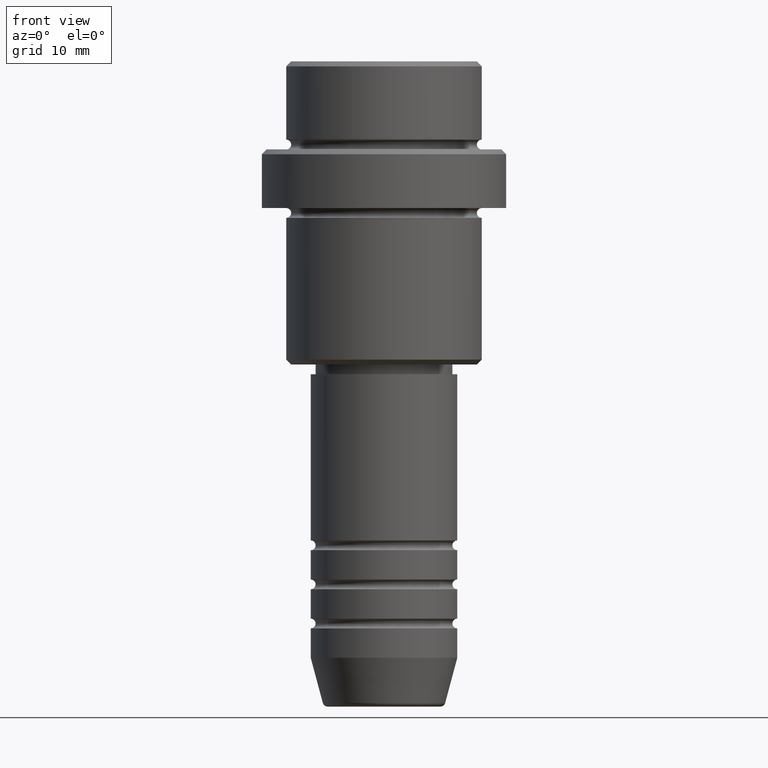
[diagram: clean part render]
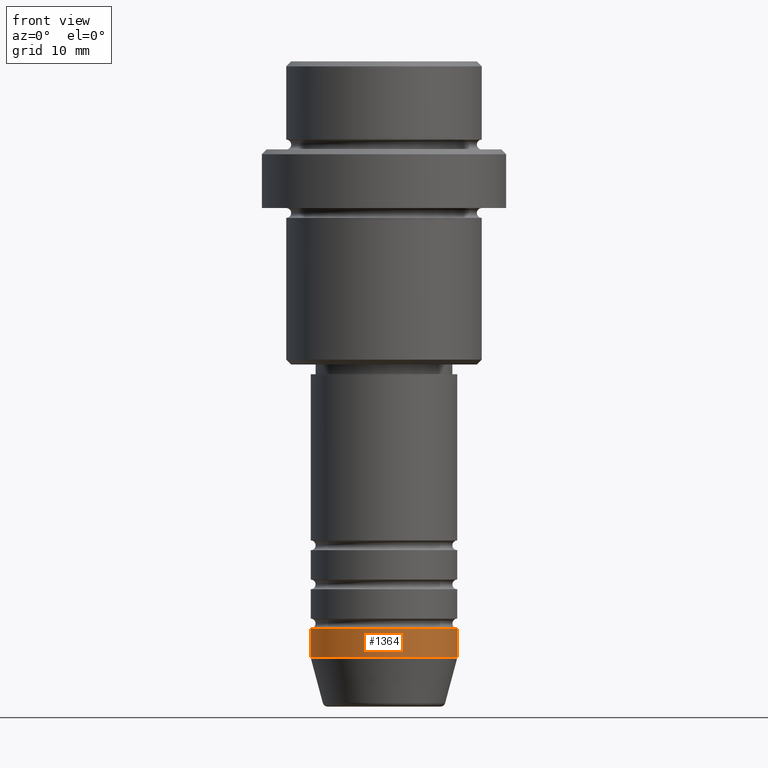
[diagram: same view with one face highlighted and labeled with its STEP entity id]
A machine part, front view. The second image highlights one B-rep face of the part: STEP entity #1364.
In plain terms, the highlighted cylindrical surface (partial cylindrical patch) has radius 7.5 mm, axis along (-0, -0, 1).
Its self-contained STEP definition (entity closure, byte-faithful):
#2 = CIRCLE ( 'NONE', #808, 7.500000000000000000 ) ;
#3 = DIRECTION ( 'NONE',  ( -0.000000000000000000, -0.000000000000000000, 1.000000000000000000 ) ) ;
#25 = VERTEX_POINT ( 'NONE', #1407 ) ;
#85 = CARTESIAN_POINT ( 'NONE',  ( 0.000000000000000000, 0.000000000000000000, 0.000000000000000000 ) ) ;
#132 = EDGE_CURVE ( 'NONE', #25, #482, #706, .T. ) ;
#153 = CARTESIAN_POINT ( 'NONE',  ( 0.000000000000000000, 0.000000000000000000, -58.00000000000000000 ) ) ;
#192 = EDGE_CURVE ( 'NONE', #1121, #25, #2, .T. ) ;
#264 = CARTESIAN_POINT ( 'NONE',  ( -7.500000000000000000, 9.184850993605147944E-16, 0.000000000000000000 ) ) ;
#268 = ORIENTED_EDGE ( 'NONE', *, *, #1224, .F. ) ;
#278 = EDGE_LOOP ( 'NONE', ( #268, #1130, #440, #1002 ) ) ;
#367 = VECTOR ( 'NONE', #710, 1000.000000000000000 ) ;
#368 = LINE ( 'NONE', #264, #367 ) ;
#407 = FACE_OUTER_BOUND ( 'NONE', #278, .T. ) ;
#440 = ORIENTED_EDGE ( 'NONE', *, *, #132, .T. ) ;
#482 = VERTEX_POINT ( 'NONE', #523 ) ;
#489 = DIRECTION ( 'NONE',  ( 1.000000000000000000, 0.000000000000000000, 0.000000000000000000 ) ) ;
#523 = CARTESIAN_POINT ( 'NONE',  ( 7.500000000000000000, 0.000000000000000000, -58.00000000000000000 ) ) ;
#591 = EDGE_CURVE ( 'NONE', #1319, #482, #1283, .T. ) ;
#629 = VECTOR ( 'NONE', #1249, 1000.000000000000000 ) ;
#640 = CARTESIAN_POINT ( 'NONE',  ( -7.500000000000000000, 9.184850993605147944E-16, -58.00000000000000000 ) ) ;
#674 = DIRECTION ( 'NONE',  ( 1.000000000000000000, 0.000000000000000000, 0.000000000000000000 ) ) ;
#700 = CARTESIAN_POINT ( 'NONE',  ( 0.000000000000000000, 0.000000000000000000, -61.00000000000000711 ) ) ;
#706 = LINE ( 'NONE', #1255, #629 ) ;
#710 = DIRECTION ( 'NONE',  ( -0.000000000000000000, -0.000000000000000000, 1.000000000000000000 ) ) ;
#711 = AXIS2_PLACEMENT_3D ( 'NONE', #153, #1329, #674 ) ;
#808 = AXIS2_PLACEMENT_3D ( 'NONE', #700, #818, #489 ) ;
#818 = DIRECTION ( 'NONE',  ( -0.000000000000000000, -0.000000000000000000, 1.000000000000000000 ) ) ;
#981 = CYLINDRICAL_SURFACE ( 'NONE', #1404, 7.500000000000000000 ) ;
#1002 = ORIENTED_EDGE ( 'NONE', *, *, #591, .F. ) ;
#1121 = VERTEX_POINT ( 'NONE', #1341 ) ;
#1130 = ORIENTED_EDGE ( 'NONE', *, *, #192, .T. ) ;
#1183 = DIRECTION ( 'NONE',  ( 1.000000000000000000, 0.000000000000000000, 0.000000000000000000 ) ) ;
#1224 = EDGE_CURVE ( 'NONE', #1121, #1319, #368, .T. ) ;
#1249 = DIRECTION ( 'NONE',  ( -0.000000000000000000, -0.000000000000000000, 1.000000000000000000 ) ) ;
#1255 = CARTESIAN_POINT ( 'NONE',  ( 7.500000000000000000, 0.000000000000000000, 0.000000000000000000 ) ) ;
#1283 = CIRCLE ( 'NONE', #711, 7.500000000000000000 ) ;
#1319 = VERTEX_POINT ( 'NONE', #640 ) ;
#1329 = DIRECTION ( 'NONE',  ( -0.000000000000000000, -0.000000000000000000, 1.000000000000000000 ) ) ;
#1341 = CARTESIAN_POINT ( 'NONE',  ( -7.500000000000000000, 9.184850993605147944E-16, -61.00000000000000711 ) ) ;
#1364 = ADVANCED_FACE ( 'NONE', ( #407 ), #981, .T. ) ;
#1404 = AXIS2_PLACEMENT_3D ( 'NONE', #85, #3, #1183 ) ;
#1407 = CARTESIAN_POINT ( 'NONE',  ( 7.500000000000000000, 0.000000000000000000, -61.00000000000000711 ) ) ;